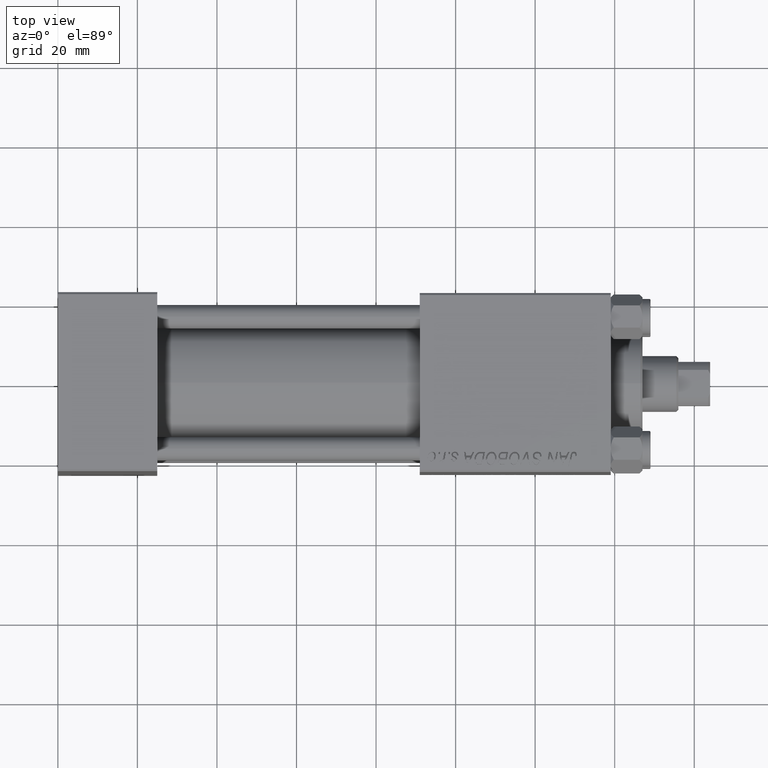
[diagram: clean part render]
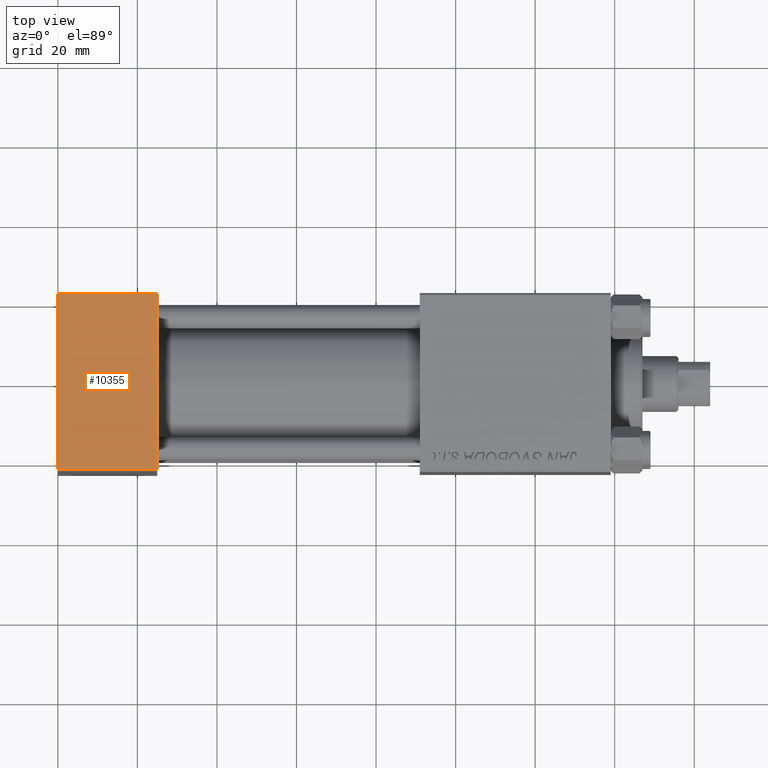
[diagram: same view with one face highlighted and labeled with its STEP entity id]
A machine part, top view. The second image highlights one B-rep face of the part: STEP entity #10355.
In plain terms, the highlighted planar face has unit normal (0, 0, -1).
Its self-contained STEP definition (entity closure, byte-faithful):
#1221 = VECTOR ( 'NONE', #28856, 1000.000000000000000 ) ;
#1932 = AXIS2_PLACEMENT_3D ( 'NONE', #21409, #14070, #25434 ) ;
#2115 = EDGE_CURVE ( 'NONE', #10284, #48072, #35817, .T. ) ;
#2328 = LINE ( 'NONE', #45003, #1221 ) ;
#4814 = LINE ( 'NONE', #20214, #15283 ) ;
#6004 = FACE_OUTER_BOUND ( 'NONE', #10628, .T. ) ;
#7468 = ORIENTED_EDGE ( 'NONE', *, *, #12682, .T. ) ;
#10156 = CARTESIAN_POINT ( 'NONE',  ( 25.00000000000000000, 22.50000000000000355, 35.00000000000000711 ) ) ;
#10284 = VERTEX_POINT ( 'NONE', #12587 ) ;
#10355 = ADVANCED_FACE ( 'NONE', ( #6004 ), #17855, .F. ) ;
#10628 = EDGE_LOOP ( 'NONE', ( #33000, #40840, #29290, #7468 ) ) ;
#12067 = DIRECTION ( 'NONE',  ( 1.000000000000000000, 0.000000000000000000, 0.000000000000000000 ) ) ;
#12587 = CARTESIAN_POINT ( 'NONE',  ( 0.000000000000000000, -21.99999999999998934, 35.00000000000000000 ) ) ;
#12682 = EDGE_CURVE ( 'NONE', #15374, #32039, #2328, .T. ) ;
#14070 = DIRECTION ( 'NONE',  ( 0.000000000000000000, 1.541976423090495387E-16, -1.000000000000000000 ) ) ;
#15283 = VECTOR ( 'NONE', #19209, 1000.000000000000000 ) ;
#15374 = VERTEX_POINT ( 'NONE', #32139 ) ;
#17855 = PLANE ( 'NONE',  #1932 ) ;
#19209 = DIRECTION ( 'NONE',  ( 0.000000000000000000, -1.000000000000000000, -1.541976423090495387E-16 ) ) ;
#20214 = CARTESIAN_POINT ( 'NONE',  ( 0.000000000000000000, 22.50000000000000355, 35.00000000000000711 ) ) ;
#20990 = VECTOR ( 'NONE', #12067, 1000.000000000000000 ) ;
#21409 = CARTESIAN_POINT ( 'NONE',  ( 25.00000000000000000, 22.50000000000000355, 35.00000000000000711 ) ) ;
#23312 = CARTESIAN_POINT ( 'NONE',  ( 25.00000000000000000, -21.99999999999998934, 35.00000000000000000 ) ) ;
#25434 = DIRECTION ( 'NONE',  ( 0.000000000000000000, 1.000000000000000000, 1.541976423090495387E-16 ) ) ;
#25552 = DIRECTION ( 'NONE',  ( 0.000000000000000000, -1.000000000000000000, -1.541976423090495387E-16 ) ) ;
#28856 = DIRECTION ( 'NONE',  ( -1.000000000000000000, 0.000000000000000000, 0.000000000000000000 ) ) ;
#29290 = ORIENTED_EDGE ( 'NONE', *, *, #37037, .F. ) ;
#30067 = CARTESIAN_POINT ( 'NONE',  ( 0.000000000000000000, 22.00000000000000355, 35.00000000000000711 ) ) ;
#31008 = CARTESIAN_POINT ( 'NONE',  ( 25.00000000000000000, -22.00000000000000355, 35.00000000000000000 ) ) ;
#32039 = VERTEX_POINT ( 'NONE', #30067 ) ;
#32139 = CARTESIAN_POINT ( 'NONE',  ( 25.00000000000000000, 22.00000000000000355, 35.00000000000000711 ) ) ;
#33000 = ORIENTED_EDGE ( 'NONE', *, *, #46285, .T. ) ;
#35817 = LINE ( 'NONE', #31008, #20990 ) ;
#37037 = EDGE_CURVE ( 'NONE', #15374, #48072, #44759, .T. ) ;
#40840 = ORIENTED_EDGE ( 'NONE', *, *, #2115, .T. ) ;
#44759 = LINE ( 'NONE', #10156, #47621 ) ;
#45003 = CARTESIAN_POINT ( 'NONE',  ( 0.000000000000000000, 22.00000000000000355, 35.00000000000000711 ) ) ;
#46285 = EDGE_CURVE ( 'NONE', #32039, #10284, #4814, .T. ) ;
#47621 = VECTOR ( 'NONE', #25552, 1000.000000000000000 ) ;
#48072 = VERTEX_POINT ( 'NONE', #23312 ) ;